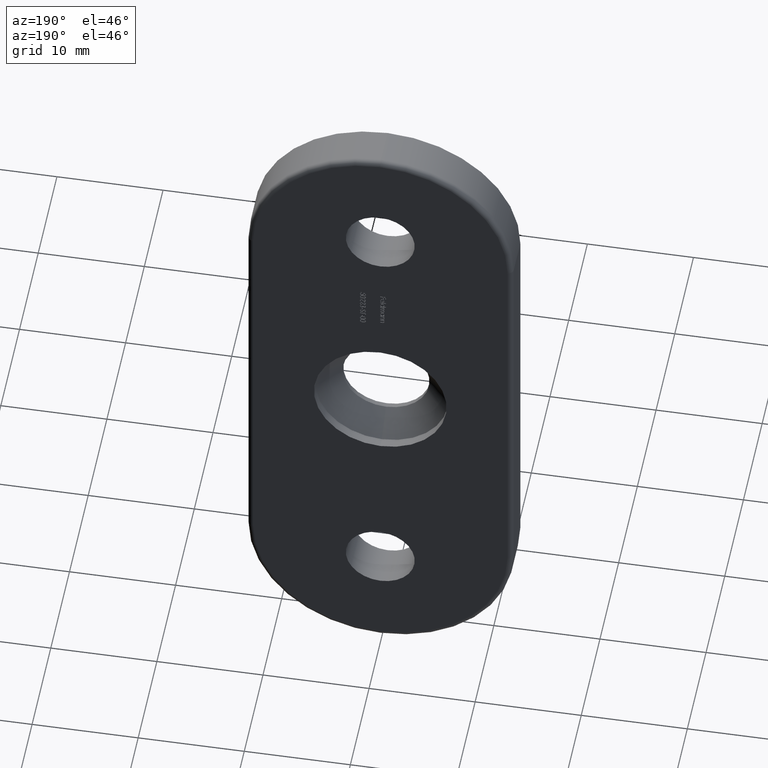
[diagram: clean part render]
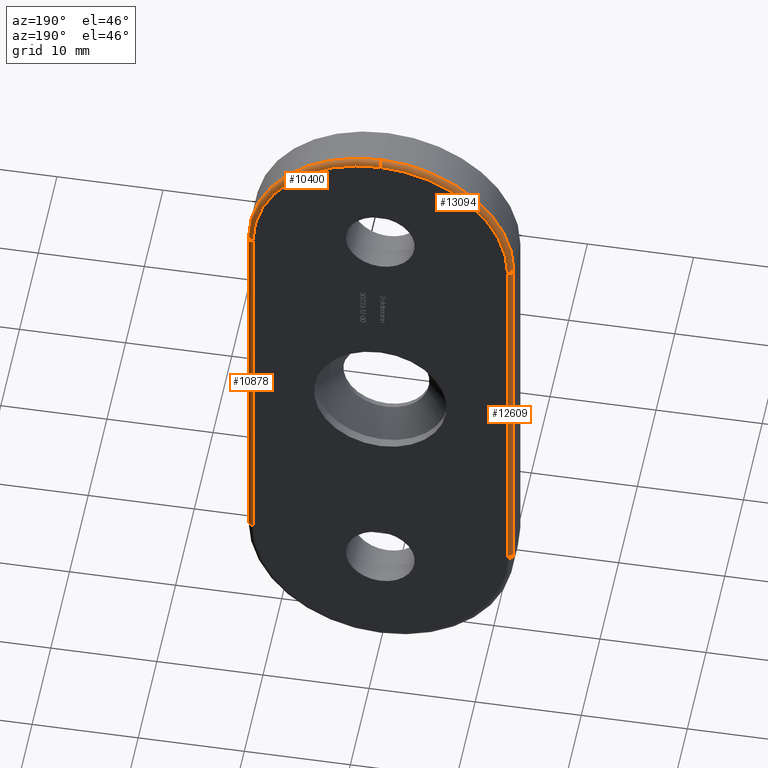
[diagram: same view with one multi-face feature highlighted, each face labeled with its STEP entity id]
A machine part, auxiliary view. The highlighted faces form ONE feature: a constant-radius fillet chain: 4 tangent blend faces with common blend radius 0.5 mm. The faces share edges in the B-rep.
Their STEP definitions:
[1] entity #13094 (Torus):
#705 = AXIS2_PLACEMENT_3D ( 'NONE', #6664, #8977, #797 ) ;
#778 = CIRCLE ( 'NONE', #11475, 0.5000000000000004441 ) ;
#797 = DIRECTION ( 'NONE',  ( 0.000000000000000000, 0.000000000000000000, -1.000000000000000000 ) ) ;
#825 = DIRECTION ( 'NONE',  ( 8.881784197001252323E-16, 0.000000000000000000, -1.000000000000000000 ) ) ;
#888 = ORIENTED_EDGE ( 'NONE', *, *, #9706, .F. ) ;
#1279 = ORIENTED_EDGE ( 'NONE', *, *, #5944, .T. ) ;
#1800 = DIRECTION ( 'NONE',  ( 0.000000000000000000, -1.000000000000000000, 0.000000000000000000 ) ) ;
#2062 = VERTEX_POINT ( 'NONE', #7985 ) ;
#2260 = ORIENTED_EDGE ( 'NONE', *, *, #2668, .F. ) ;
#2668 = EDGE_CURVE ( 'NONE', #11461, #9148, #3801, .T. ) ;
#2807 = CARTESIAN_POINT ( 'NONE',  ( -12.00000000000000000, 3.500000000000000000, 19.00000000000000000 ) ) ;
#2947 = DIRECTION ( 'NONE',  ( 0.000000000000000000, 0.000000000000000000, -1.000000000000000000 ) ) ;
#2953 = CIRCLE ( 'NONE', #3745, 12.00000000000000000 ) ;
#3745 = AXIS2_PLACEMENT_3D ( 'NONE', #7807, #11452, #825 ) ;
#3801 = CIRCLE ( 'NONE', #705, 12.50000000000000000 ) ;
#4948 = CARTESIAN_POINT ( 'NONE',  ( 0.000000000000000000, 3.500000000000000000, 31.00000000000000000 ) ) ;
#5169 = EDGE_CURVE ( 'NONE', #11461, #5305, #778, .T. ) ;
#5305 = VERTEX_POINT ( 'NONE', #12059 ) ;
#5944 = EDGE_CURVE ( 'NONE', #2062, #9148, #8057, .T. ) ;
#5960 = DIRECTION ( 'NONE',  ( 0.000000000000000000, 0.000000000000000000, 1.000000000000000000 ) ) ;
#6238 = EDGE_LOOP ( 'NONE', ( #1279, #2260, #7336, #888 ) ) ;
#6664 = CARTESIAN_POINT ( 'NONE',  ( 0.000000000000000000, 3.500000000000000000, 19.00000000000000000 ) ) ;
#7156 = TOROIDAL_SURFACE ( 'NONE', #11326, 12.00000000000000000, 0.5000000000000000000 ) ;
#7336 = ORIENTED_EDGE ( 'NONE', *, *, #5169, .T. ) ;
#7807 = CARTESIAN_POINT ( 'NONE',  ( 0.000000000000000000, 4.000000000000000000, 19.00000000000000000 ) ) ;
#7925 = CARTESIAN_POINT ( 'NONE',  ( -12.50000000000000000, 3.500000000000000000, 19.00000000000000000 ) ) ;
#7985 = CARTESIAN_POINT ( 'NONE',  ( -12.00000000000000000, 4.000000000000000000, 19.00000000000000000 ) ) ;
#8057 = CIRCLE ( 'NONE', #13112, 0.5000000000000004441 ) ;
#8977 = DIRECTION ( 'NONE',  ( 0.000000000000000000, -1.000000000000000000, 0.000000000000000000 ) ) ;
#9148 = VERTEX_POINT ( 'NONE', #7925 ) ;
#9296 = CARTESIAN_POINT ( 'NONE',  ( 0.000000000000000000, 3.500000000000000000, 31.50000000000000000 ) ) ;
#9706 = EDGE_CURVE ( 'NONE', #2062, #5305, #2953, .T. ) ;
#9887 = CARTESIAN_POINT ( 'NONE',  ( 0.000000000000000000, 3.500000000000000000, 19.00000000000000000 ) ) ;
#10873 = DIRECTION ( 'NONE',  ( 1.000000000000000000, 0.000000000000000000, 0.000000000000000000 ) ) ;
#11326 = AXIS2_PLACEMENT_3D ( 'NONE', #9887, #1800, #2947 ) ;
#11452 = DIRECTION ( 'NONE',  ( -0.000000000000000000, 1.000000000000000000, -0.000000000000000000 ) ) ;
#11461 = VERTEX_POINT ( 'NONE', #9296 ) ;
#11475 = AXIS2_PLACEMENT_3D ( 'NONE', #4948, #13947, #5960 ) ;
#12059 = CARTESIAN_POINT ( 'NONE',  ( 0.000000000000000000, 4.000000000000000000, 31.00000000000000000 ) ) ;
#12578 = FACE_OUTER_BOUND ( 'NONE', #6238, .T. ) ;
#13094 = ADVANCED_FACE ( 'NONE', ( #12578 ), #7156, .T. ) ;
#13112 = AXIS2_PLACEMENT_3D ( 'NONE', #2807, #13324, #10873 ) ;
#13324 = DIRECTION ( 'NONE',  ( 0.000000000000000000, -0.000000000000000000, 1.000000000000000000 ) ) ;
#13947 = DIRECTION ( 'NONE',  ( -1.000000000000000000, 0.000000000000000000, 0.000000000000000000 ) ) ;
[2] entity #10400 (Torus):
#41 = EDGE_CURVE ( 'NONE', #5305, #13424, #12539, .T. ) ;
#495 = DIRECTION ( 'NONE',  ( 0.000000000000000000, -1.000000000000000000, 0.000000000000000000 ) ) ;
#777 = VERTEX_POINT ( 'NONE', #2587 ) ;
#778 = CIRCLE ( 'NONE', #11475, 0.5000000000000004441 ) ;
#1108 = ORIENTED_EDGE ( 'NONE', *, *, #13462, .T. ) ;
#1729 = DIRECTION ( 'NONE',  ( 0.000000000000000000, 0.000000000000000000, 1.000000000000000000 ) ) ;
#1810 = ORIENTED_EDGE ( 'NONE', *, *, #6078, .F. ) ;
#2587 = CARTESIAN_POINT ( 'NONE',  ( 12.50000000000000000, 3.500000000000000000, 19.00000000000000000 ) ) ;
#2682 = AXIS2_PLACEMENT_3D ( 'NONE', #3670, #10666, #5920 ) ;
#2799 = AXIS2_PLACEMENT_3D ( 'NONE', #8675, #1729, #2862 ) ;
#2862 = DIRECTION ( 'NONE',  ( 1.000000000000000000, 0.000000000000000000, 0.000000000000000000 ) ) ;
#3180 = AXIS2_PLACEMENT_3D ( 'NONE', #4791, #14040, #9699 ) ;
#3593 = ORIENTED_EDGE ( 'NONE', *, *, #41, .F. ) ;
#3670 = CARTESIAN_POINT ( 'NONE',  ( 0.000000000000000000, 3.500000000000000000, 19.00000000000000000 ) ) ;
#3969 = CARTESIAN_POINT ( 'NONE',  ( 12.00000000000000000, 4.000000000000000000, 19.00000000000000000 ) ) ;
#4791 = CARTESIAN_POINT ( 'NONE',  ( 0.000000000000000000, 4.000000000000000000, 19.00000000000000000 ) ) ;
#4948 = CARTESIAN_POINT ( 'NONE',  ( 0.000000000000000000, 3.500000000000000000, 31.00000000000000000 ) ) ;
#5169 = EDGE_CURVE ( 'NONE', #11461, #5305, #778, .T. ) ;
#5305 = VERTEX_POINT ( 'NONE', #12059 ) ;
#5522 = CIRCLE ( 'NONE', #6961, 12.50000000000000000 ) ;
#5920 = DIRECTION ( 'NONE',  ( 0.000000000000000000, 0.000000000000000000, -1.000000000000000000 ) ) ;
#5960 = DIRECTION ( 'NONE',  ( 0.000000000000000000, 0.000000000000000000, 1.000000000000000000 ) ) ;
#6078 = EDGE_CURVE ( 'NONE', #777, #11461, #5522, .T. ) ;
#6378 = DIRECTION ( 'NONE',  ( 0.000000000000000000, 0.000000000000000000, -1.000000000000000000 ) ) ;
#6486 = CARTESIAN_POINT ( 'NONE',  ( 0.000000000000000000, 3.500000000000000000, 19.00000000000000000 ) ) ;
#6961 = AXIS2_PLACEMENT_3D ( 'NONE', #6486, #495, #6378 ) ;
#8066 = ORIENTED_EDGE ( 'NONE', *, *, #5169, .F. ) ;
#8586 = CIRCLE ( 'NONE', #2799, 0.5000000000000004441 ) ;
#8675 = CARTESIAN_POINT ( 'NONE',  ( 12.00000000000000000, 3.500000000000000000, 19.00000000000000000 ) ) ;
#9296 = CARTESIAN_POINT ( 'NONE',  ( 0.000000000000000000, 3.500000000000000000, 31.50000000000000000 ) ) ;
#9699 = DIRECTION ( 'NONE',  ( 0.000000000000000000, 0.000000000000000000, -1.000000000000000000 ) ) ;
#9810 = EDGE_LOOP ( 'NONE', ( #1108, #3593, #8066, #1810 ) ) ;
#10400 = ADVANCED_FACE ( 'NONE', ( #14694 ), #13979, .T. ) ;
#10666 = DIRECTION ( 'NONE',  ( 0.000000000000000000, -1.000000000000000000, 0.000000000000000000 ) ) ;
#11461 = VERTEX_POINT ( 'NONE', #9296 ) ;
#11475 = AXIS2_PLACEMENT_3D ( 'NONE', #4948, #13947, #5960 ) ;
#12059 = CARTESIAN_POINT ( 'NONE',  ( 0.000000000000000000, 4.000000000000000000, 31.00000000000000000 ) ) ;
#12539 = CIRCLE ( 'NONE', #3180, 12.00000000000000000 ) ;
#13424 = VERTEX_POINT ( 'NONE', #3969 ) ;
#13462 = EDGE_CURVE ( 'NONE', #777, #13424, #8586, .T. ) ;
#13947 = DIRECTION ( 'NONE',  ( -1.000000000000000000, 0.000000000000000000, 0.000000000000000000 ) ) ;
#13979 = TOROIDAL_SURFACE ( 'NONE', #2682, 12.00000000000000000, 0.5000000000000000000 ) ;
#14040 = DIRECTION ( 'NONE',  ( -0.000000000000000000, 1.000000000000000000, -0.000000000000000000 ) ) ;
#14694 = FACE_OUTER_BOUND ( 'NONE', #9810, .T. ) ;
[3] entity #10878 (Cylinder):
#321 = ORIENTED_EDGE ( 'NONE', *, *, #2461, .F. ) ;
#777 = VERTEX_POINT ( 'NONE', #2587 ) ;
#1115 = LINE ( 'NONE', #12263, #13082 ) ;
#1729 = DIRECTION ( 'NONE',  ( 0.000000000000000000, 0.000000000000000000, 1.000000000000000000 ) ) ;
#2461 = EDGE_CURVE ( 'NONE', #13424, #7966, #14975, .T. ) ;
#2587 = CARTESIAN_POINT ( 'NONE',  ( 12.50000000000000000, 3.500000000000000000, 19.00000000000000000 ) ) ;
#2799 = AXIS2_PLACEMENT_3D ( 'NONE', #8675, #1729, #2862 ) ;
#2859 = DIRECTION ( 'NONE',  ( 0.000000000000000000, 0.000000000000000000, -1.000000000000000000 ) ) ;
#2862 = DIRECTION ( 'NONE',  ( 1.000000000000000000, 0.000000000000000000, 0.000000000000000000 ) ) ;
#2946 = ORIENTED_EDGE ( 'NONE', *, *, #13462, .F. ) ;
#3081 = DIRECTION ( 'NONE',  ( 0.000000000000000000, 0.000000000000000000, -1.000000000000000000 ) ) ;
#3243 = CARTESIAN_POINT ( 'NONE',  ( 12.00000000000000000, 3.500000000000000000, -19.00000000000000355 ) ) ;
#3812 = EDGE_LOOP ( 'NONE', ( #5672, #321, #2946, #10477 ) ) ;
#3969 = CARTESIAN_POINT ( 'NONE',  ( 12.00000000000000000, 4.000000000000000000, 19.00000000000000000 ) ) ;
#4963 = CIRCLE ( 'NONE', #5422, 0.5000000000000004441 ) ;
#5307 = CARTESIAN_POINT ( 'NONE',  ( 12.50000000000000000, 3.500000000000000000, -19.00000000000000355 ) ) ;
#5414 = DIRECTION ( 'NONE',  ( 0.000000000000000000, 0.000000000000000000, 1.000000000000000000 ) ) ;
#5422 = AXIS2_PLACEMENT_3D ( 'NONE', #3243, #5414, #7812 ) ;
#5672 = ORIENTED_EDGE ( 'NONE', *, *, #14184, .T. ) ;
#7185 = EDGE_CURVE ( 'NONE', #14632, #777, #1115, .T. ) ;
#7282 = FACE_OUTER_BOUND ( 'NONE', #3812, .T. ) ;
#7704 = CARTESIAN_POINT ( 'NONE',  ( 12.00000000000000000, 4.000000000000000000, 31.50000000000000000 ) ) ;
#7812 = DIRECTION ( 'NONE',  ( 1.000000000000000000, 0.000000000000000000, 0.000000000000000000 ) ) ;
#7939 = DIRECTION ( 'NONE',  ( -0.000000000000000000, -0.000000000000000000, 1.000000000000000000 ) ) ;
#7966 = VERTEX_POINT ( 'NONE', #12671 ) ;
#8586 = CIRCLE ( 'NONE', #2799, 0.5000000000000004441 ) ;
#8675 = CARTESIAN_POINT ( 'NONE',  ( 12.00000000000000000, 3.500000000000000000, 19.00000000000000000 ) ) ;
#10425 = VECTOR ( 'NONE', #3081, 1000.000000000000000 ) ;
#10477 = ORIENTED_EDGE ( 'NONE', *, *, #7185, .F. ) ;
#10878 = ADVANCED_FACE ( 'NONE', ( #7282 ), #14503, .T. ) ;
#11435 = DIRECTION ( 'NONE',  ( -1.000000000000000000, 0.000000000000000000, 0.000000000000000000 ) ) ;
#11918 = CARTESIAN_POINT ( 'NONE',  ( 12.00000000000000000, 3.500000000000000000, 31.50000000000000000 ) ) ;
#12263 = CARTESIAN_POINT ( 'NONE',  ( 12.50000000000000000, 3.500000000000000000, 31.50000000000000000 ) ) ;
#12671 = CARTESIAN_POINT ( 'NONE',  ( 12.00000000000000000, 4.000000000000000000, -19.00000000000000355 ) ) ;
#13082 = VECTOR ( 'NONE', #7939, 1000.000000000000000 ) ;
#13424 = VERTEX_POINT ( 'NONE', #3969 ) ;
#13462 = EDGE_CURVE ( 'NONE', #777, #13424, #8586, .T. ) ;
#14184 = EDGE_CURVE ( 'NONE', #14632, #7966, #4963, .T. ) ;
#14503 = CYLINDRICAL_SURFACE ( 'NONE', #14515, 0.5000000000000004441 ) ;
#14515 = AXIS2_PLACEMENT_3D ( 'NONE', #11918, #2859, #11435 ) ;
#14632 = VERTEX_POINT ( 'NONE', #5307 ) ;
#14975 = LINE ( 'NONE', #7704, #10425 ) ;
[4] entity #12609 (Cylinder):
#579 = DIRECTION ( 'NONE',  ( -1.000000000000000000, 0.000000000000000000, 0.000000000000000000 ) ) ;
#936 = VECTOR ( 'NONE', #6655, 1000.000000000000000 ) ;
#948 = CIRCLE ( 'NONE', #13951, 0.5000000000000004441 ) ;
#2035 = ORIENTED_EDGE ( 'NONE', *, *, #6729, .F. ) ;
#2062 = VERTEX_POINT ( 'NONE', #7985 ) ;
#2725 = DIRECTION ( 'NONE',  ( 1.000000000000000000, 0.000000000000000000, 0.000000000000000000 ) ) ;
#2775 = DIRECTION ( 'NONE',  ( 0.000000000000000000, -0.000000000000000000, 1.000000000000000000 ) ) ;
#2807 = CARTESIAN_POINT ( 'NONE',  ( -12.00000000000000000, 3.500000000000000000, 19.00000000000000000 ) ) ;
#3858 = CYLINDRICAL_SURFACE ( 'NONE', #8894, 0.5000000000000004441 ) ;
#3876 = VECTOR ( 'NONE', #6876, 1000.000000000000000 ) ;
#4591 = CARTESIAN_POINT ( 'NONE',  ( -12.50000000000000000, 3.500000000000000000, 31.50000000000000000 ) ) ;
#5082 = EDGE_CURVE ( 'NONE', #9148, #11632, #9130, .T. ) ;
#5944 = EDGE_CURVE ( 'NONE', #2062, #9148, #8057, .T. ) ;
#6655 = DIRECTION ( 'NONE',  ( -0.000000000000000000, -0.000000000000000000, 1.000000000000000000 ) ) ;
#6729 = EDGE_CURVE ( 'NONE', #12619, #2062, #13274, .T. ) ;
#6876 = DIRECTION ( 'NONE',  ( 0.000000000000000000, 0.000000000000000000, -1.000000000000000000 ) ) ;
#7925 = CARTESIAN_POINT ( 'NONE',  ( -12.50000000000000000, 3.500000000000000000, 19.00000000000000000 ) ) ;
#7985 = CARTESIAN_POINT ( 'NONE',  ( -12.00000000000000000, 4.000000000000000000, 19.00000000000000000 ) ) ;
#8057 = CIRCLE ( 'NONE', #13112, 0.5000000000000004441 ) ;
#8065 = EDGE_LOOP ( 'NONE', ( #11578, #13196, #13923, #2035 ) ) ;
#8239 = DIRECTION ( 'NONE',  ( 0.000000000000000000, 0.000000000000000000, -1.000000000000000000 ) ) ;
#8894 = AXIS2_PLACEMENT_3D ( 'NONE', #15046, #8239, #579 ) ;
#9130 = LINE ( 'NONE', #4591, #3876 ) ;
#9144 = CARTESIAN_POINT ( 'NONE',  ( -12.00000000000000000, 4.000000000000000000, 31.50000000000000000 ) ) ;
#9148 = VERTEX_POINT ( 'NONE', #7925 ) ;
#9317 = CARTESIAN_POINT ( 'NONE',  ( -12.00000000000000000, 4.000000000000000000, -19.00000000000000355 ) ) ;
#9817 = FACE_OUTER_BOUND ( 'NONE', #8065, .T. ) ;
#10873 = DIRECTION ( 'NONE',  ( 1.000000000000000000, 0.000000000000000000, 0.000000000000000000 ) ) ;
#11578 = ORIENTED_EDGE ( 'NONE', *, *, #13978, .T. ) ;
#11632 = VERTEX_POINT ( 'NONE', #14068 ) ;
#12028 = CARTESIAN_POINT ( 'NONE',  ( -12.00000000000000000, 3.500000000000000000, -19.00000000000000355 ) ) ;
#12609 = ADVANCED_FACE ( 'NONE', ( #9817 ), #3858, .T. ) ;
#12619 = VERTEX_POINT ( 'NONE', #9317 ) ;
#13112 = AXIS2_PLACEMENT_3D ( 'NONE', #2807, #13324, #10873 ) ;
#13196 = ORIENTED_EDGE ( 'NONE', *, *, #5082, .F. ) ;
#13274 = LINE ( 'NONE', #9144, #936 ) ;
#13324 = DIRECTION ( 'NONE',  ( 0.000000000000000000, -0.000000000000000000, 1.000000000000000000 ) ) ;
#13923 = ORIENTED_EDGE ( 'NONE', *, *, #5944, .F. ) ;
#13951 = AXIS2_PLACEMENT_3D ( 'NONE', #12028, #2775, #2725 ) ;
#13978 = EDGE_CURVE ( 'NONE', #12619, #11632, #948, .T. ) ;
#14068 = CARTESIAN_POINT ( 'NONE',  ( -12.50000000000000000, 3.500000000000000000, -19.00000000000000355 ) ) ;
#15046 = CARTESIAN_POINT ( 'NONE',  ( -12.00000000000000000, 3.500000000000000000, 31.50000000000000000 ) ) ;